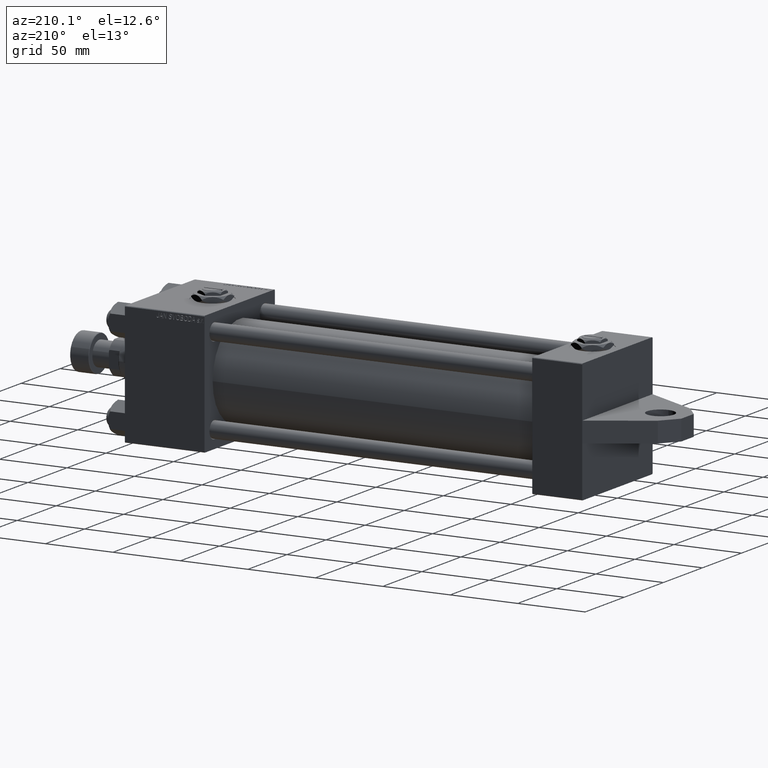
[diagram: clean part render]
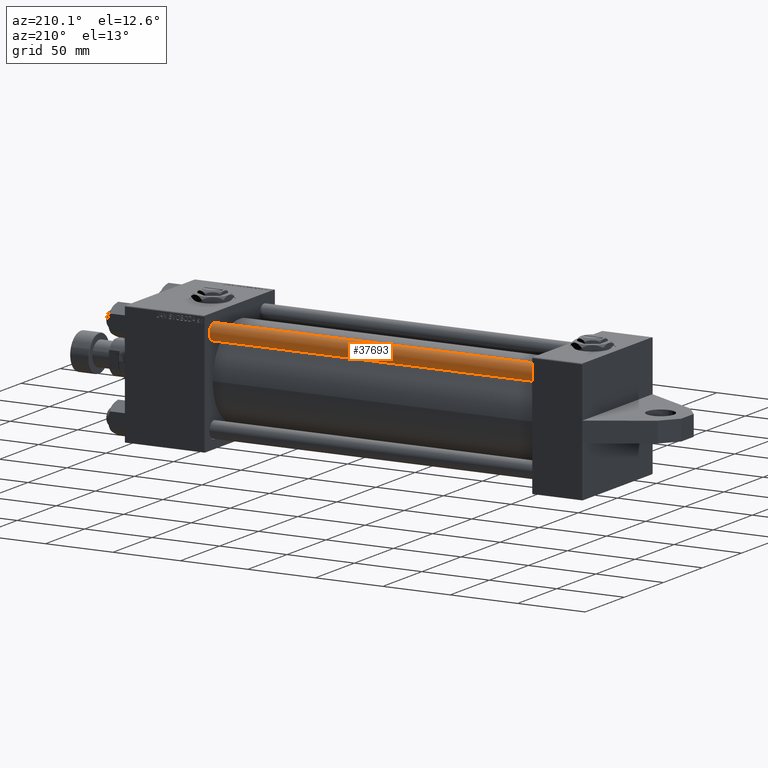
[diagram: same view with one face highlighted and labeled with its STEP entity id]
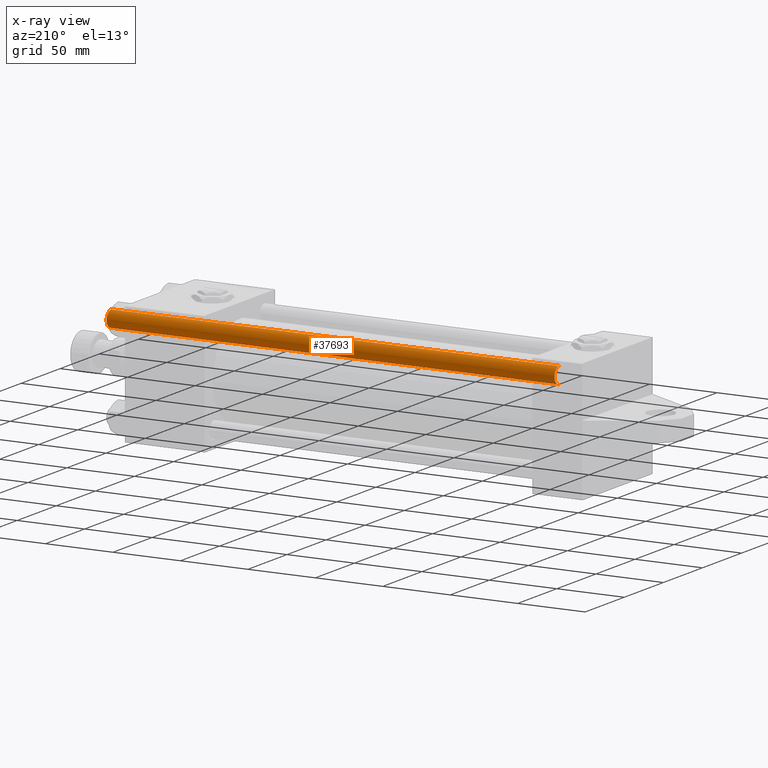
[diagram: x-ray of the same camera — body ghosted, the highlighted face saturated]
A machine part, auxiliary view. The second image highlights one B-rep face of the part: STEP entity #37693.
The next image is the same camera in x-ray: the body ghosted, the highlighted face saturated — about 0% of this face is hidden behind the body in this view.
In plain terms, the highlighted cylindrical surface (edge-blend (fillet) strip) has radius 6 mm, axis along (-1, 0, -0).
Its self-contained STEP definition (entity closure, byte-faithful):
#541 = ORIENTED_EDGE ( 'NONE', *, *, #40029, .F. ) ;
#3769 = CARTESIAN_POINT ( 'NONE',  ( 0.000000000000000000, 0.000000000000000000, 333.0000000000000000 ) ) ;
#3896 = CARTESIAN_POINT ( 'NONE',  ( -6.000000000000000888, 0.000000000000000000, 332.5000000000001137 ) ) ;
#6397 = ORIENTED_EDGE ( 'NONE', *, *, #40798, .T. ) ;
#7728 = DIRECTION ( 'NONE',  ( 1.000000000000000000, 0.000000000000000000, 0.000000000000000000 ) ) ;
#7925 = DIRECTION ( 'NONE',  ( -0.000000000000000000, -0.000000000000000000, -1.000000000000000000 ) ) ;
#8448 = AXIS2_PLACEMENT_3D ( 'NONE', #17815, #47096, #29134 ) ;
#11646 = VERTEX_POINT ( 'NONE', #44167 ) ;
#12390 = VECTOR ( 'NONE', #33485, 1000.000000000000000 ) ;
#12812 = EDGE_LOOP ( 'NONE', ( #48176, #6397, #19977, #541 ) ) ;
#14263 = CARTESIAN_POINT ( 'NONE',  ( -6.000000000000000888, 0.000000000000000000, 333.0000000000000000 ) ) ;
#15810 = CYLINDRICAL_SURFACE ( 'NONE', #19317, 6.000000000000000888 ) ;
#16320 = VERTEX_POINT ( 'NONE', #31073 ) ;
#17242 = EDGE_CURVE ( 'NONE', #38192, #11646, #24447, .T. ) ;
#17815 = CARTESIAN_POINT ( 'NONE',  ( 0.000000000000000000, 0.000000000000000000, 0.5000000000000004441 ) ) ;
#18244 = CARTESIAN_POINT ( 'NONE',  ( 6.000000000000000888, 7.347880794884120722E-16, 333.0000000000000000 ) ) ;
#19317 = AXIS2_PLACEMENT_3D ( 'NONE', #3769, #7925, #19475 ) ;
#19475 = DIRECTION ( 'NONE',  ( -1.000000000000000000, 0.000000000000000000, 0.000000000000000000 ) ) ;
#19977 = ORIENTED_EDGE ( 'NONE', *, *, #40590, .T. ) ;
#24447 = CIRCLE ( 'NONE', #48014, 6.000000000000000888 ) ;
#25321 = DIRECTION ( 'NONE',  ( -0.000000000000000000, -0.000000000000000000, -1.000000000000000000 ) ) ;
#25387 = LINE ( 'NONE', #18244, #12390 ) ;
#25700 = DIRECTION ( 'NONE',  ( 0.000000000000000000, 0.000000000000000000, -1.000000000000000000 ) ) ;
#28780 = LINE ( 'NONE', #14263, #28898 ) ;
#28898 = VECTOR ( 'NONE', #25321, 1000.000000000000000 ) ;
#29134 = DIRECTION ( 'NONE',  ( 1.000000000000000000, 0.000000000000000000, 0.000000000000000000 ) ) ;
#29828 = FACE_OUTER_BOUND ( 'NONE', #12812, .T. ) ;
#31073 = CARTESIAN_POINT ( 'NONE',  ( -6.000000000000000888, 0.000000000000000000, 0.5000000000000004441 ) ) ;
#33485 = DIRECTION ( 'NONE',  ( -0.000000000000000000, -0.000000000000000000, -1.000000000000000000 ) ) ;
#35984 = VERTEX_POINT ( 'NONE', #41907 ) ;
#37693 = ADVANCED_FACE ( 'NONE', ( #29828 ), #15810, .T. ) ;
#38192 = VERTEX_POINT ( 'NONE', #3896 ) ;
#40029 = EDGE_CURVE ( 'NONE', #38192, #16320, #28780, .T. ) ;
#40590 = EDGE_CURVE ( 'NONE', #35984, #16320, #40677, .T. ) ;
#40677 = CIRCLE ( 'NONE', #8448, 6.000000000000000888 ) ;
#40798 = EDGE_CURVE ( 'NONE', #11646, #35984, #25387, .T. ) ;
#41907 = CARTESIAN_POINT ( 'NONE',  ( 6.000000000000000888, 7.347880794884120722E-16, 0.5000000000000004441 ) ) ;
#44167 = CARTESIAN_POINT ( 'NONE',  ( 6.000000000000000888, 7.347880794884120722E-16, 332.5000000000001137 ) ) ;
#45590 = CARTESIAN_POINT ( 'NONE',  ( 0.000000000000000000, 0.000000000000000000, 332.5000000000001137 ) ) ;
#47096 = DIRECTION ( 'NONE',  ( -0.000000000000000000, -0.000000000000000000, 1.000000000000000000 ) ) ;
#48014 = AXIS2_PLACEMENT_3D ( 'NONE', #45590, #25700, #7728 ) ;
#48176 = ORIENTED_EDGE ( 'NONE', *, *, #17242, .T. ) ;